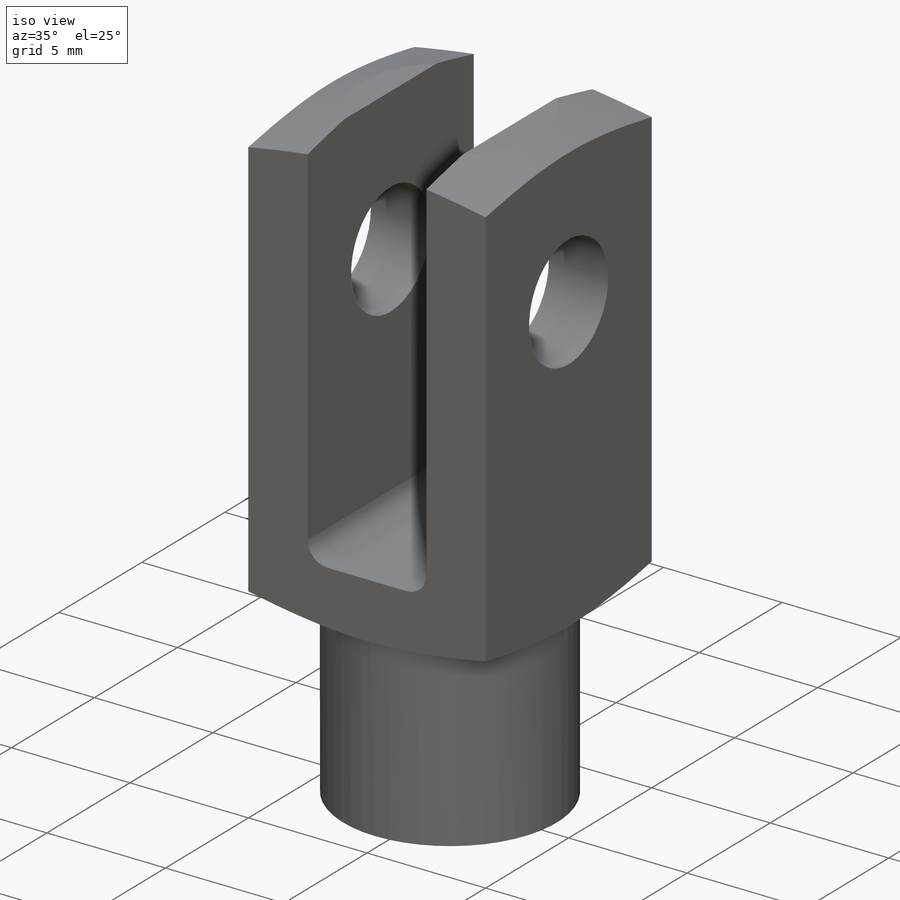
[diagram: iso view]
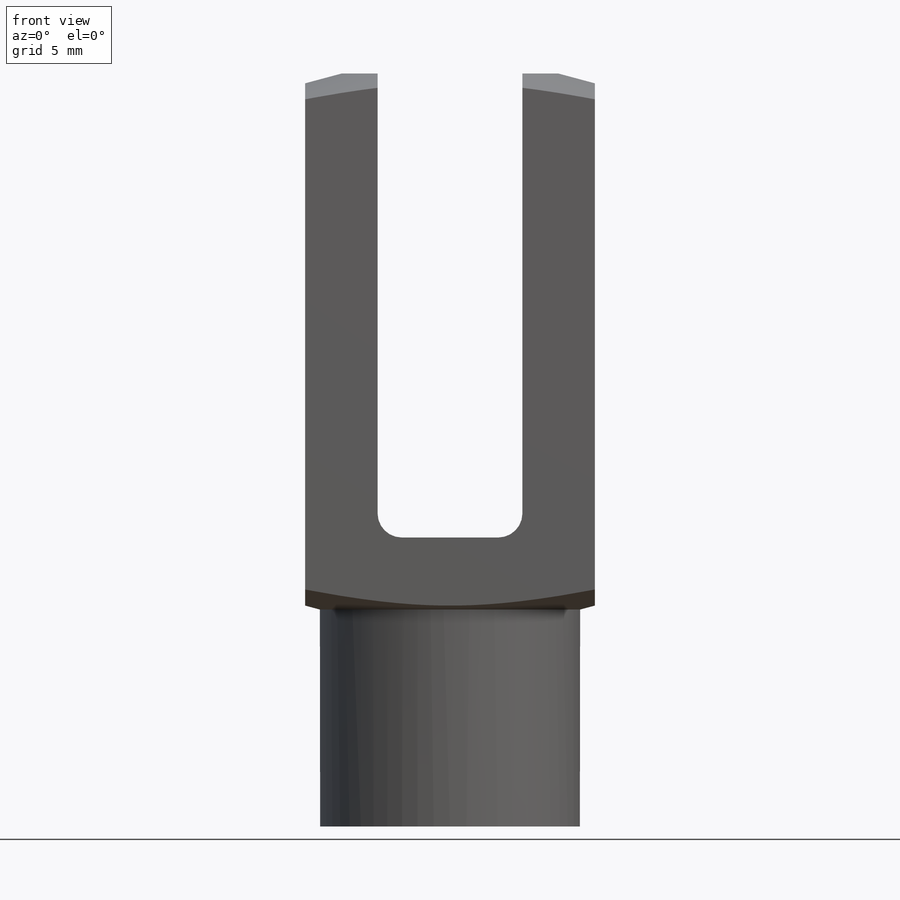
[diagram: front view]
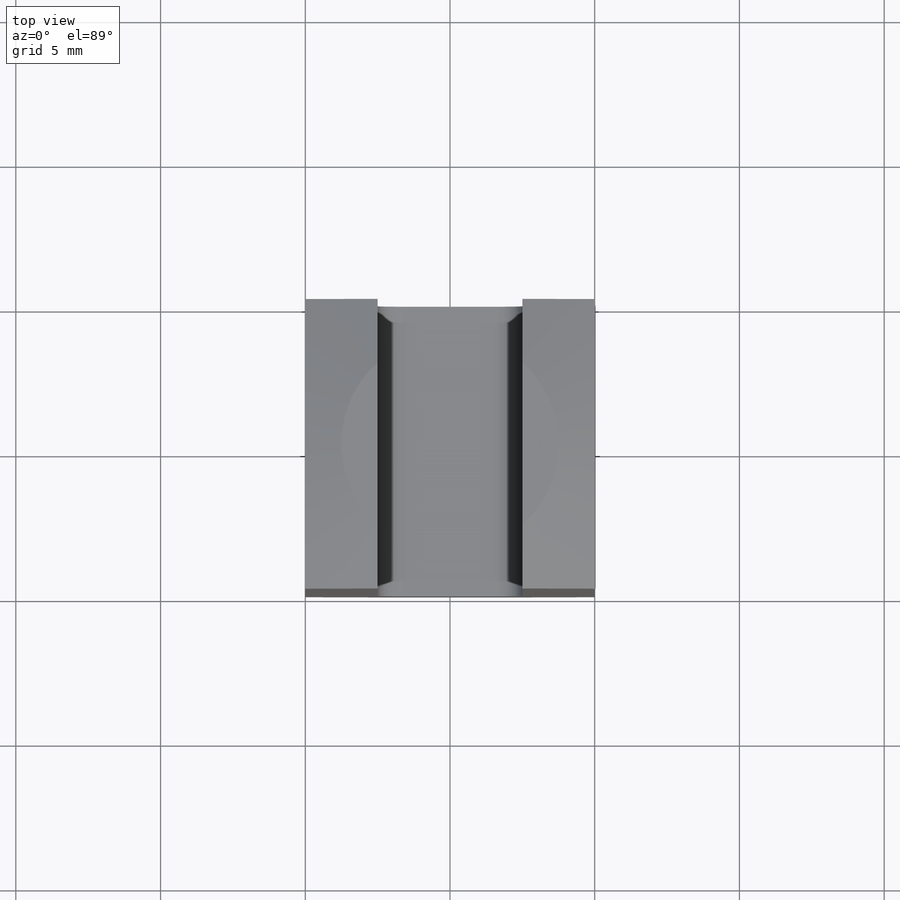
[diagram: top view]
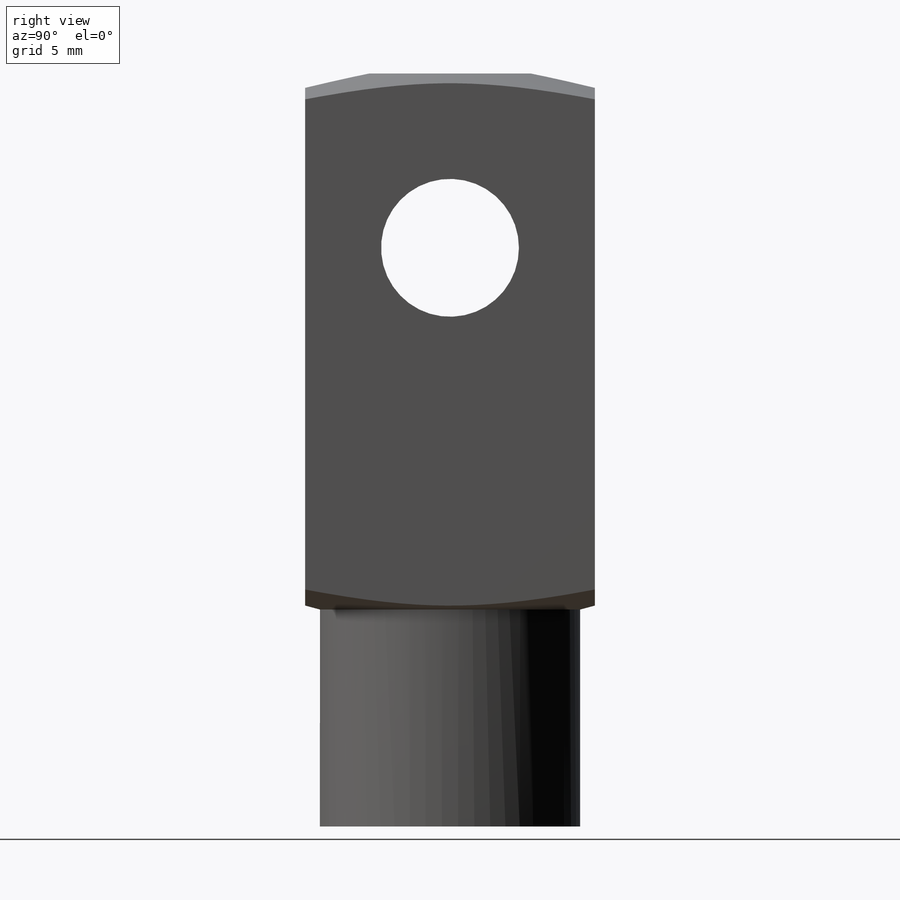
[diagram: right view]
SOLIDWORKS PART (.sldprt)
format: sldprt  version: not decoded by parser v0  size: 627,200 bytes
history: native  units: mm
features: sketch x12, cut_extrude x5, plane x2, material x1, revolve x1, extrude x1, helix x1, sweep x1 (+13 scaffold rows collapsed)
feature tree (37):
  scaffold x13  (default folders/planes/origin — collapsed)
  material  "Plain Carbon Steel"
  sketch  "Sketch1"  dims[c1.d3=8.9916mm c1.l3=7.493mm c1.b1=5.0038mm c1.a1=10.0076mm c1.l1=26.0096mm c1.F=32.004mm c1.g=10.0076mm c1.F Pin=91.948mm c1.l2=19.9898mm c1.D1=32.004mm c1.D5=27.9908mm c1.D2=~30.107467mm c2.D5=~10.816167mm c2.thread depth=7.9375mm]
  revolve  "Revolve1"  Angle=360deg
  sketch  "Sketch2"  dims[d1-A=4.7625mm D1=10.0076mm D2=8.9916mm D3=7.493mm D4=~91.213808mm]
  sketch  "Sketch3"
  extrude  "Extrude1"  [1 undecoded]
  cut_extrude  "Cut-Extrude6"  [1 undecoded]
  sketch  "Sketch5"
  cut_extrude  "Cut-Extrude2"  [1 undecoded]
  sketch  "Sketch6"
  cut_extrude  "Cut-Extrude3"  [1 undecoded]
  plane  "Plane1"
  sketch  "Sketch12"  dims[thread dia=4.826mm]
  cut_extrude  "Extrude3"  [1 undecoded]
  sketch  "Sketch14"  dims[D1=0.0mm]
  helix  "Helix/Spiral1"  Pitch=8.73125mm pitch=0.79375mm
  sketch  "Sketch15"  dims[c1.D1=~2.543413mm c2.D1=60.0deg c2.D2=~0.099219mm c2.D3=~0.396875mm]
  sweep  "Sweep1"
  sketch  "Sketch16"  dims[D1=0.0mm]
  cut_extrude  "Extrude4"  [1 undecoded]
  sketch  "Sketch10"  dims[c1.D1=~5.175483mm c1.D2=~6.18254mm c2.D1=0.254mm c2.D2=0.762mm c2.D3=1.016mm c2.D4=0.254mm c2.D5=0.762mm c2.D6=0.762mm c2.D7=0.762mm]
  plane  "Plane2"
  sketch  "Sketch11"  dims[c1.D1=3.556mm c2.D1=45.0deg c2.D2=~1.163045mm c3.D2=50.0deg c3.D3=1.778mm c4.D3=30.0deg]
  sketch  "Sketch17"  dims[D1=4.826mm]
decode coverage: 11 of 21 modeling features carry decoded parameters
note: ~ marks probable driven/reference dimensions
note: 6 parameter values undecoded
summary: no parameter record found for 6 features
note: suppression state not decoded; provenance and decode notes live in map.json
